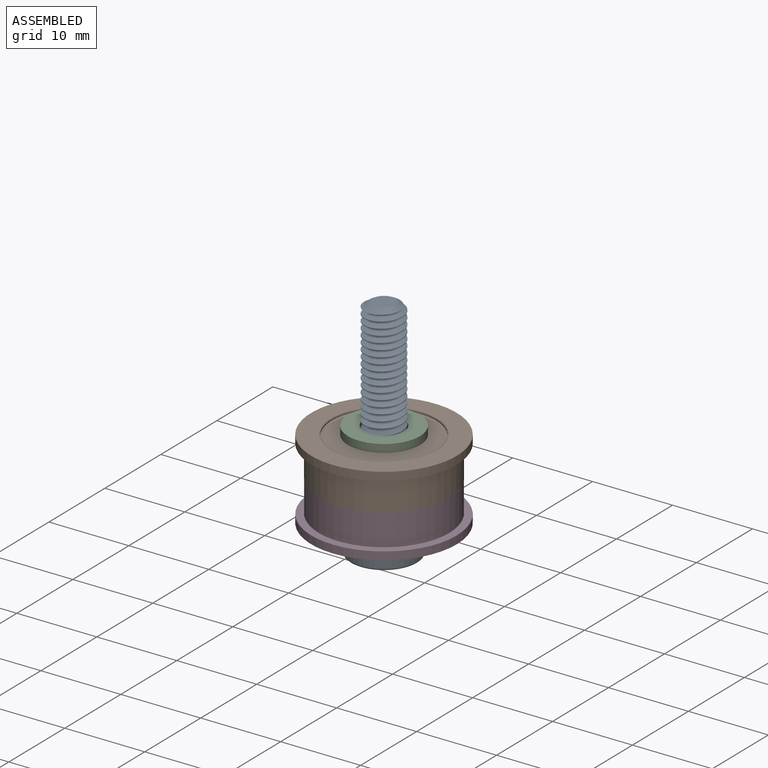
[diagram: assembled view]
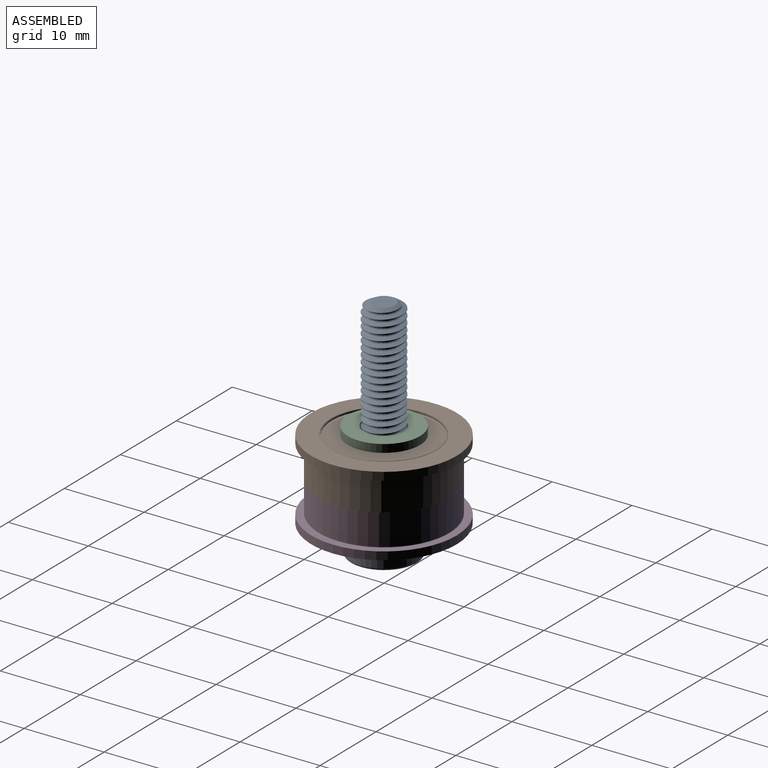
[diagram: assembled view, second angle]
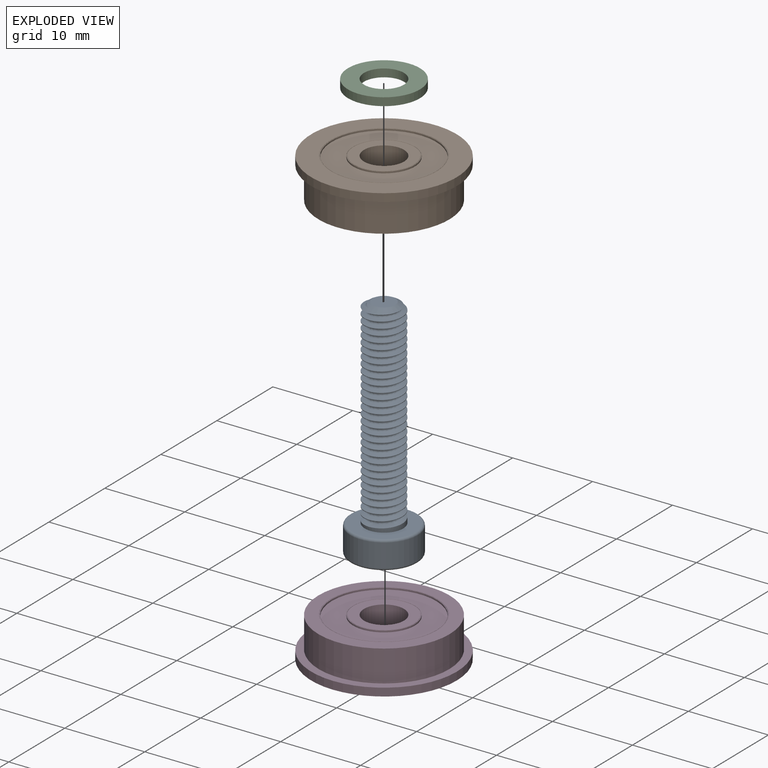
[diagram: exploded view]
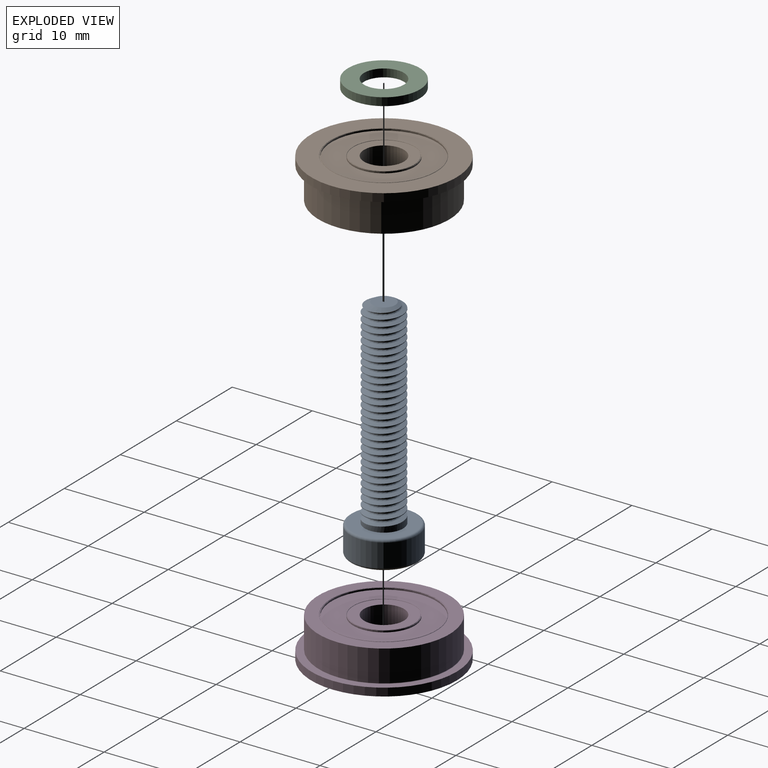
[diagram: exploded view, second angle]
ASSEMBLY  parts=4 mates=6
PART A: 58 faces, bbox 9.1x9.1x28.7 mm
  f0: plane 7.8x7.8mm, normal (0,0,-1), area 40mm2, adj f3,f4,f5,f6,f7,f8,f17
  f1: cylinder r=4.2mm len=8.4mm, axis (0,0,1), area 76.5mm2, adj f16,f17
  f2: plane 7.8x7.8mm, normal (0,0,1), area 29.7mm2, adj f16,f48
  f3: plane 2x1.73mm, normal (0,-1,0), area 3.5mm2, adj f0,f4,f8,f11
  f4: plane 2x1.5mm, normal (-0.87,-0.5,0), area 3.5mm2, adj f0,f3,f5,f10
  f5: plane 2x1.5mm, normal (-0.87,0.5,0), area 3.5mm2, adj f0,f4,f6,f12
  f6: plane 2x1.73mm, normal (0,1,0), area 3.5mm2, adj f0,f5,f7,f14
  f7: plane 2x1.5mm, normal (0.87,0.5,0), area 3.5mm2, adj f0,f6,f8,f15
  f8: plane 2x1.5mm, normal (0.87,-0.5,0), area 3.5mm2, adj f0,f3,f7,f13
  f9: plane 1.15x1mm, normal (0,0,-1), area 0.9mm2, adj f10,f11,f12,f13,f14,f15
  f10: cylinder r=1mm len=2mm, axis (0.5,-0.87,0), area 1.8mm2, adj f4,f9,f11,f12
  f11: cylinder r=1mm len=1.73mm, axis (1,0,0), area 1.8mm2, adj f3,f9,f10,f13
  f12: cylinder r=1mm len=2mm, axis (-0.5,-0.87,0), area 1.8mm2, adj f5,f9,f10,f14
  f13: cylinder r=1mm len=2mm, axis (0.5,0.87,0), area 1.8mm2, adj f8,f9,f11,f15
  f14: cylinder r=1mm len=1.73mm, axis (-1,0,0), area 1.8mm2, adj f6,f9,f12,f15
  f15: cylinder r=1mm len=2mm, axis (-0.5,0.87,0), area 1.8mm2, adj f7,f9,f13,f14
  f16: torus R=3.9mm, axis (0,0,-1), area 12.1mm2, adj f1,f2
  f17: torus R=3.9mm, axis (0,0,-1), area 12.1mm2, adj f0,f1
  f18: cylinder r=2.4mm len=4.8mm, axis (0,0,-1), area 1.1mm2, adj f19,f48,f50,f52,f55
  f19: cylinder r=2.4mm len=4.8mm, axis (0,0,-1), area 1.1mm2, adj f18,f20,f50,f52
  f20: cylinder r=2.4mm len=4.8mm, axis (0,0,-1), area 1.1mm2, adj f19,f21,f50,f52
  f21: cylinder r=2.4mm len=4.8mm, axis (0,0,-1), area 1.1mm2, adj f20,f22,f50,f52
  f22: cylinder r=2.4mm len=4.8mm, axis (0,0,-1), area 1.1mm2, adj f21,f23,f50,f52
  f23: cylinder r=2.4mm len=4.8mm, axis (0,0,-1), area 1.1mm2, adj f22,f24,f50,f52
  f24: cylinder r=2.4mm len=4.8mm, axis (0,0,-1), area 1.1mm2, adj f23,f25,f50,f52
  f25: cylinder r=2.4mm len=4.8mm, axis (0,0,-1), area 1.1mm2, adj f24,f26,f50,f52
  f26: cylinder r=2.4mm len=4.8mm, axis (0,0,-1), area 1.1mm2, adj f25,f27,f50,f52
  f27: cylinder r=2.4mm len=4.8mm, axis (0,0,-1), area 1.1mm2, adj f26,f28,f50,f52
  f28: cylinder r=2.4mm len=4.8mm, axis (0,0,-1), area 1.1mm2, adj f27,f29,f50,f52
  f29: cylinder r=2.4mm len=4.8mm, axis (0,0,-1), area 1.1mm2, adj f28,f30,f50,f52
  f30: cylinder r=2.4mm len=4.8mm, axis (0,0,-1), area 1.1mm2, adj f29,f31,f50,f52
  f31: cylinder r=2.4mm len=4.8mm, axis (0,0,-1), area 1.1mm2, adj f30,f32,f50,f52
  f32: cylinder r=2.4mm len=4.8mm, axis (0,0,-1), area 1.1mm2, adj f31,f33,f50,f52
  f33: cylinder r=2.4mm len=4.8mm, axis (0,0,-1), area 1.1mm2, adj f32,f34,f50,f52
  f34: cylinder r=2.4mm len=4.8mm, axis (0,0,-1), area 1.1mm2, adj f33,f35,f50,f52
  f35: cylinder r=2.4mm len=4.8mm, axis (0,0,-1), area 1.1mm2, adj f34,f36,f50,f52
  f36: cylinder r=2.4mm len=4.8mm, axis (0,0,-1), area 1.1mm2, adj f35,f37,f50,f52
  f37: cylinder r=2.4mm len=4.8mm, axis (0,0,-1), area 1.1mm2, adj f36,f38,f50,f52
  f38: cylinder r=2.4mm len=4.8mm, axis (0,0,-1), area 1.1mm2, adj f37,f39,f50,f52
  f39: cylinder r=2.4mm len=4.8mm, axis (0,0,-1), area 1.1mm2, adj f38,f40,f50,f52
  f40: cylinder r=2.4mm len=4.8mm, axis (0,0,-1), area 1.1mm2, adj f39,f41,f50,f52
  f41: cylinder r=2.4mm len=4.8mm, axis (0,0,-1), area 1.1mm2, adj f40,f42,f50,f52
  f42: cylinder r=2.4mm len=4.8mm, axis (0,0,-1), area 1.1mm2, adj f41,f43,f50,f52
  f43: cylinder r=2.4mm len=4.8mm, axis (0,0,-1), area 1.1mm2, adj f42,f44,f50,f52
  f44: cylinder r=2.4mm len=4.8mm, axis (0,0,-1), area 1.1mm2, adj f43,f45,f50,f52
  f45: cylinder r=2.4mm len=4.8mm, axis (0,0,-1), area 1.1mm2, adj f44,f46,f50,f52
  f46: cylinder r=2.4mm len=4.8mm, axis (0,0,-1), area 1.1mm2, adj f45,f47,f50,f52
  f47: cylinder r=2.4mm len=2.06mm, axis (0,0,-1), area 0.1mm2, adj f46,f50,f52,f56
  f48: cylinder r=2.4mm len=4.8mm, axis (0,0,-1), area 9.3mm2, adj f2,f18,f49,f52,f53
  f49: plane 0.53x0.52mm, normal (0,-1,0), area 0.2mm2, adj f48,f53,f54,f55
  f50: bspline ~24.24x5.54mm, area 209mm2, adj f18,f19,f20,f21,f22,f23,f24,f25
  f51: bspline ~24.84x4.41mm, area 168.6mm2, adj f50,f52,f54,f56
  f52: bspline ~24.64x5.54mm, area 213.5mm2, adj f18,f19,f20,f21,f22,f23,f24,f25
  f53: bspline ~0.65x0.32mm, area 0.1mm2, adj f48,f49,f52,f54
  f54: bspline ~0.41x0.23mm, area 0.1mm2, adj f49,f51,f53,f55
  f55: bspline ~0.65x0.32mm, area 0.1mm2, adj f18,f49,f50,f54
  f56: cone r=1.41mm half-angle=61.5deg, axis (0,0,-1), area 7.6mm2, adj f47,f50,f51,f52,f57
  f57: plane 2.83x2.83mm, normal (0,0,1), area 6.3mm2, adj f56
PART B: 19 faces, bbox 18.2x18.2x5.1 mm
  f0: plane 18.2x18.2mm, normal (0,0,-1), area 121mm2, adj f1,f12
  f1: cylinder r=9.1mm len=18.2mm, axis (0,0,1), area 57.2mm2, adj f0,f2
  f2: plane 18.2x18.2mm, normal (0,0,1), area 49.3mm2, adj f1,f3
  f3: torus R=8.19mm, axis (0,0,1), area 7.8mm2, adj f2,f4
  f4: cylinder r=8.2mm len=16.4mm, axis (0,0,1), area 201.4mm2, adj f3,f5
  f5: plane 16.4x16.4mm, normal (0,0,1), area 72.1mm2, adj f4,f6
  f6: torus R=6.6mm, axis (0,0,1), area 7.1mm2, adj f5,f17
  f7: torus R=3.8mm, axis (0,0,1), area 4mm2, adj f8,f16
  f8: plane 7.49x7.49mm, normal (0,0,1), area 24.4mm2, adj f7,f9
  f9: cylinder r=2.5mm len=5mm, axis (0,0,1), area 78.5mm2, adj f8,f10
  f10: plane 7.49x7.49mm, normal (0,0,-1), area 24.4mm2, adj f9,f11
  f11: torus R=3.8mm, axis (0,0,1), area 4mm2, adj f10,f14
  f12: torus R=6.6mm, axis (0,0,1), area 7.1mm2, adj f0,f13
  f13: cylinder r=6.55mm len=13.09mm, axis (0,0,-1), area 8.2mm2, adj f12,f15
  f14: cylinder r=3.85mm len=7.71mm, axis (0,0,-1), area 4.8mm2, adj f11,f15
  f15: plane 13.09x13.09mm, normal (0,0,-1), area 87.9mm2, adj f13,f14
  f16: cylinder r=3.85mm len=7.71mm, axis (0,0,1), area 4.8mm2, adj f7,f18
  f17: cylinder r=6.55mm len=13.09mm, axis (0,0,1), area 8.2mm2, adj f6,f18
  f18: plane 13.09x13.09mm, normal (0,0,1), area 87.9mm2, adj f16,f17
PART C: 4 faces, bbox 1x9x9 mm
  f0: cylinder r=2.5mm len=5mm, axis (-1,0,0), area 15.7mm2, adj f2,f3
  f1: cylinder r=4.5mm len=9mm, axis (-1,0,0), area 28.3mm2, adj f2,f3
  f2: plane 9x9mm, normal (1,0,0), area 44mm2, adj f0,f1
  f3: plane 9x9mm, normal (-1,0,0), area 44mm2, adj f0,f1
PART D: same geometry as B
PLACE A t=(-7.91,15.47,-27.39)mm fixed
PLACE B rot(axis=(0.64,-0.77,0),180deg) t=(-7.91,15.47,-17.39)mm
PLACE C rot(axis=(0.71,-0.06,0.71),172.9deg) t=(-25.66,42.48,-17.39)mm
PLACE D t=(-7.91,15.47,-27.39)mm
MATE planar A.f1 <-> D.f1  axis (0,0,1) through (-7.91,15.47,-27.39)mm
MATE planar B.f1 <-> D.f1  axis (0,0,-1) through (-7.91,15.47,-22.39)mm
MATE cylindrical D.f1 <-> A.f1  axis (0,0,1) through (-7.91,15.47,-24.89)mm
MATE planar B.f1 <-> C.f0  axis (0,0,1) through (-7.91,15.47,-17.39)mm
MATE cylindrical A.f1 <-> B.f1  axis (0,0,1) through (-7.91,15.47,-29.14)mm
MATE cylindrical A.f1 <-> C.f0  axis (0,0,1) through (-7.91,15.47,-29.14)mm
